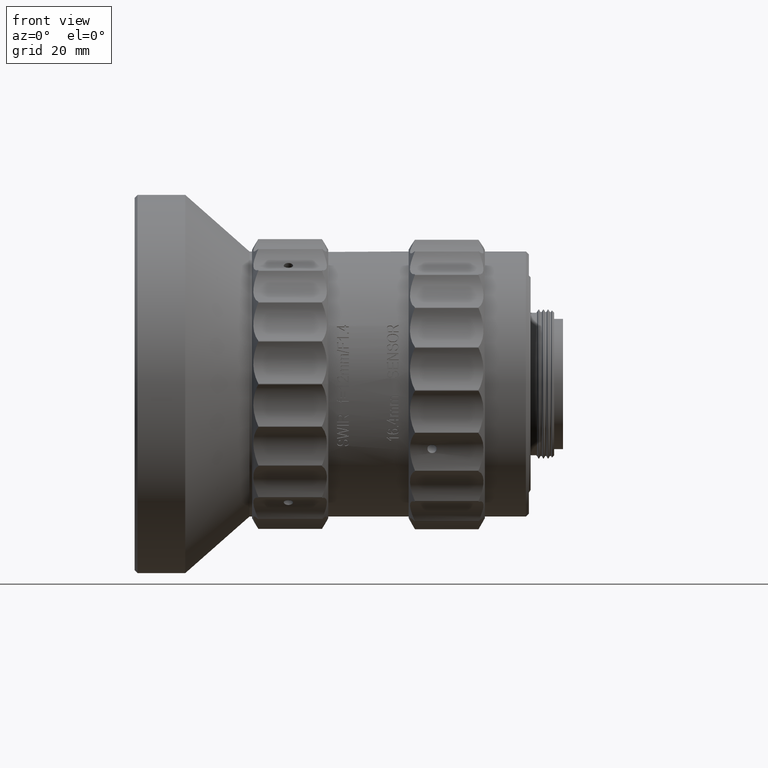
[diagram: clean part render]
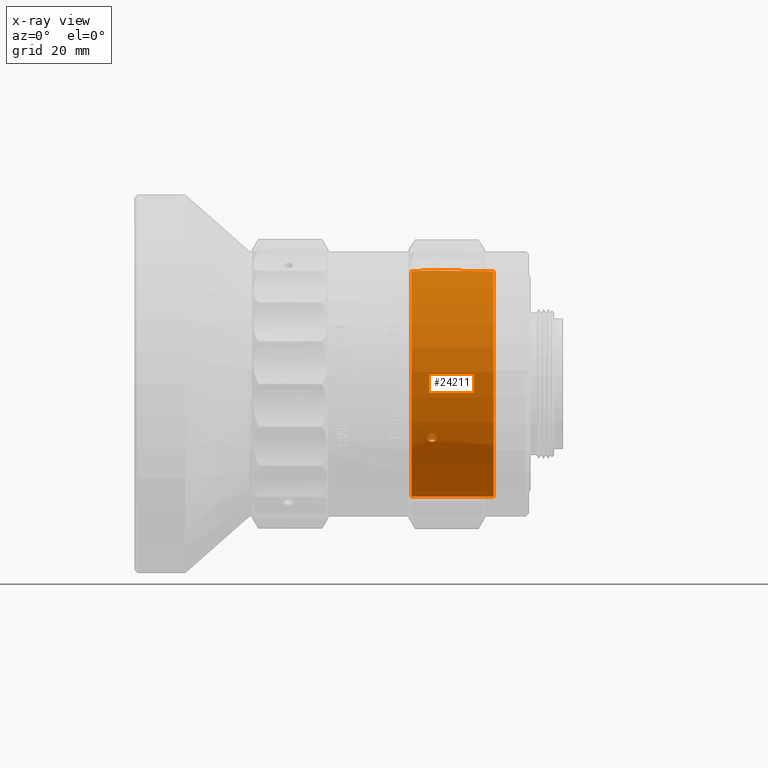
[diagram: x-ray — body ghosted, one internal face saturated and labeled with its STEP entity id]
A machine part, front view, then the same camera in x-ray: the body is ghosted and one INTERNAL B-rep face — a face not visible from any outside direction — is saturated and labeled: STEP entity #24211.
In plain terms, the highlighted cylindrical surface (bore or boss wall) has radius 19.325 mm, axis along (-1, 0, -0).
Its self-contained STEP definition (entity closure, byte-faithful):
#1458 = EDGE_CURVE ( 'NONE', #45052, #45052, #30689, .T. ) ;
#1744 = CARTESIAN_POINT ( 'NONE',  ( 10.46657280345892360, -17.21024025238607535, -8.790485733136330637 ) ) ;
#2420 = CARTESIAN_POINT ( 'NONE',  ( 11.86524698605239969, 16.64138578132303081, -9.824931971593915847 ) ) ;
#3637 = VERTEX_POINT ( 'NONE', #34147 ) ;
#4030 = ORIENTED_EDGE ( 'NONE', *, *, #28160, .F. ) ;
#4715 = CARTESIAN_POINT ( 'NONE',  ( 10.38652374420801472, 0.7988025383809647106, 19.30872661455866535 ) ) ;
#5603 = CARTESIAN_POINT ( 'NONE',  ( 11.87918453679185760, -17.21766475113674133, -8.776642030549991702 ) ) ;
#7524 = CARTESIAN_POINT ( 'NONE',  ( 10.74903446724937695, 16.04615642691115696, -10.77027571418564023 ) ) ;
#7937 = CARTESIAN_POINT ( 'NONE',  ( 11.56908393124501266, 16.05451788601875052, -10.75684409065582336 ) ) ;
#8357 = CARTESIAN_POINT ( 'NONE',  ( 11.58278566961441491, 16.79834498069409676, -9.554767445571396678 ) ) ;
#9525 = DIRECTION ( 'NONE',  ( 0.000000000000000000, 0.5262185795805698341, 0.8503493438018328021 ) ) ;
#9555 = EDGE_LOOP ( 'NONE', ( #19121 ) ) ;
#10382 = CARTESIAN_POINT ( 'NONE',  ( 10.45263517093136052, -16.82188760208558165, -9.513228805840961755 ) ) ;
#11490 = CARTESIAN_POINT ( 'NONE',  ( 10.45263517093135874, 0.1722459831437894995, 19.32479640598022641 ) ) ;
#13614 = CARTESIAN_POINT ( 'NONE',  ( 10.36605221678390087, -16.92422289942868829, -9.331123036677865912 ) ) ;
#13858 = CARTESIAN_POINT ( 'NONE',  ( 10.46657289794988799, 16.21790398624965590, -10.50926254643127145 ) ) ;
#14076 = CARTESIAN_POINT ( 'NONE',  ( 11.27161580211968683, 1.389383277042686826, 19.27498998989774392 ) ) ;
#15471 = CARTESIAN_POINT ( 'NONE',  ( 21.66590972429174755, 1.485686957706086389E-13, 3.134080337083709183E-11 ) ) ;
#15544 = CARTESIAN_POINT ( 'NONE',  ( 11.96598077744916111, 16.48762598211984809, -10.08090783074721308 ) ) ;
#16428 = CARTESIAN_POINT ( 'NONE',  ( 7.665909894755713161, 1.485686960589964959E-13, 3.134080336982831276E-11 ) ) ;
#16722 = CARTESIAN_POINT ( 'NONE',  ( 10.67400350064318459, -16.71139614040120946, -9.705169446767699881 ) ) ;
#16856 = CARTESIAN_POINT ( 'NONE',  ( 7.665909894755713161, 10.16917405039433042, 16.43300106900122515 ) ) ;
#17001 = CARTESIAN_POINT ( 'NONE',  ( 10.52520552376666352, 1.080405923557038239, 19.29491994150334477 ) ) ;
#17847 = CARTESIAN_POINT ( 'NONE',  ( 11.65781601578262183, 1.229112623057049491, 19.28601454720259412 ) ) ;
#17859 = FACE_OUTER_BOUND ( 'NONE', #28398, .T. ) ;
#18557 = CARTESIAN_POINT ( 'NONE',  ( 10.95449817998014375, 15.99793935039390469, -10.84073620841405727 ) ) ;
#18684 = FACE_BOUND ( 'NONE', #69399, .T. ) ;
#19121 = ORIENTED_EDGE ( 'NONE', *, *, #1458, .F. ) ;
#19240 = AXIS2_PLACEMENT_3D ( 'NONE', #15471, #67465, #9525 ) ;
#19561 = CARTESIAN_POINT ( 'NONE',  ( 11.94529602625587827, -16.92372110608342695, -9.330202189695897985 ) ) ;
#22936 = CARTESIAN_POINT ( 'NONE',  ( 11.58278532226193214, -0.1245013913080505880, 19.32517721631352714 ) ) ;
#23088 = CARTESIAN_POINT ( 'NONE',  ( 11.37533973741013327, -17.37825889659280065, -8.453008758051080207 ) ) ;
#23363 = FACE_OUTER_BOUND ( 'NONE', #75309, .T. ) ;
#23782 = CARTESIAN_POINT ( 'NONE',  ( 10.95647956556122438, -0.1890413695327664567, 19.32411712616280752 ) ) ;
#24211 = ADVANCED_FACE ( 'NONE', ( #23363, #50810, #17859, #76636, #18684 ), #68187, .F. ) ;
#25463 = CARTESIAN_POINT ( 'NONE',  ( -47.52072224693124269, 1.485686971957932503E-13, 3.134080336585182291E-11 ) ) ;
#26570 = CARTESIAN_POINT ( 'NONE',  ( 10.67400377372870146, 16.76062146801043795, -9.619908677286323595 ) ) ;
#26992 = CARTESIAN_POINT ( 'NONE',  ( 10.36583901202857305, 16.37838112029110249, -10.25744340013975986 ) ) ;
#27998 = CARTESIAN_POINT ( 'NONE',  ( 10.36583901206215330, -17.07239709922281179, -9.055372466375798624 ) ) ;
#28160 = EDGE_CURVE ( 'NONE', #40589, #40589, #46311, .T. ) ;
#28398 = EDGE_LOOP ( 'NONE', ( #35066 ) ) ;
#28653 = CARTESIAN_POINT ( 'NONE',  ( 11.65781628886812271, 16.08762234516977685, -10.70744984723395632 ) ) ;
#29700 = CARTESIAN_POINT ( 'NONE',  ( 11.37533973741013149, 1.368609125384991021, 19.27651805706497257 ) ) ;
#30689 = B_SPLINE_CURVE_WITH_KNOTS ( 'NONE', 3,
 ( #48871, #55620, #23088, #55202, #57617, #5603, #31422, #57196, #19561, #81050, #83054, #70314, #31842, #74674, #51260, #70730, #16722, #10382, #13614, #27998, #39409, #1744, #46192, #47437, #53349, #59709 ),
 .UNSPECIFIED., .T., .F.,
 ( 4, 2, 2, 2, 2, 2, 2, 2, 2, 2, 2, 2, 4 ),
 ( 0.000000000000000000, 0.0003126140986186883692, 0.0006252281972373767384, 0.001250456394474757380, 0.001563070493093447538, 0.001875684591712137913, 0.002500912788949519096, 0.002813526887568210122, 0.003126140986186900280, 0.003751369183424277127, 0.004063983282042966418, 0.004376597380661655275, 0.005001825577899026050 ),
 .UNSPECIFIED. ) ;
#31422 = CARTESIAN_POINT ( 'NONE',  ( 11.96576757266026014, -17.12229396256914526, -8.962490020956231263 ) ) ;
#31665 = CARTESIAN_POINT ( 'NONE',  ( 11.06020398739163646, 16.83988907772281607, -9.480177258331107026 ) ) ;
#31842 = CARTESIAN_POINT ( 'NONE',  ( 11.37732160953117599, -16.63001887698250059, -9.843683109007510978 ) ) ;
#33309 = VERTEX_POINT ( 'NONE', #64603 ) ;
#34147 = CARTESIAN_POINT ( 'NONE',  ( 11.16590989475566076, 16.83988907772281607, -9.480177258331112355 ) ) ;
#34170 = CARTESIAN_POINT ( 'NONE',  ( 11.94529604530330147, 16.54205262142268040, -9.991271392537649731 ) ) ;
#34628 = ORIENTED_EDGE ( 'NONE', *, *, #57171, .F. ) ;
#35066 = ORIENTED_EDGE ( 'NONE', *, *, #44529, .F. ) ;
#35621 = CARTESIAN_POINT ( 'NONE',  ( 10.36583901206215153, 0.6940159529729874599, 19.31281582465773994 ) ) ;
#35892 = DIRECTION ( 'NONE',  ( 1.000000000000000000, -2.059913263988547804E-23, 7.205536881789808455E-23 ) ) ;
#36871 = CARTESIAN_POINT ( 'NONE',  ( 10.67400350064318637, -0.04922521875962491966, 19.32507831372365104 ) ) ;
#39244 = CARTESIAN_POINT ( 'NONE',  ( 11.16590989475566076, 16.83988907772281607, -9.480177258331108803 ) ) ;
#39409 = CARTESIAN_POINT ( 'NONE',  ( 10.38652374420801650, -17.12124903209959470, -8.962580016387121873 ) ) ;
#39663 = CARTESIAN_POINT ( 'NONE',  ( 10.52520566755982401, 16.16968776202702429, -10.58311911428592644 ) ) ;
#39852 = AXIS2_PLACEMENT_3D ( 'NONE', #16428, #35892, #73552 ) ;
#40092 = CARTESIAN_POINT ( 'NONE',  ( 11.37534022395007582, 16.00964984880990372, -10.82350918425581199 ) ) ;
#40589 = VERTEX_POINT ( 'NONE', #52415 ) ;
#40976 = B_SPLINE_CURVE_WITH_KNOTS ( 'NONE', 3,
 ( #72022, #14076, #29700, #43240, #17847, #74950, #75786, #69013, #67749, #62249, #80486, #22936, #54636, #62666, #23782, #74115, #36871, #11490, #43650, #35621, #4715, #69424, #17001, #61413, #55465, #60993 ),
 .UNSPECIFIED., .T., .F.,
 ( 4, 2, 2, 2, 2, 2, 2, 2, 2, 2, 2, 2, 4 ),
 ( 0.000000000000000000, 0.0003126140986186886402, 0.0006252281972373772805, 0.001250456394474755211, 0.001563070493093444068, 0.001875684591712133142, 0.002500912788949514760, 0.002813526887568203183, 0.003126140986186890739, 0.003751369183424264116, 0.004063983282042949938, 0.004376597380661637060, 0.005001825577899013039 ),
 .UNSPECIFIED. ) ;
#43240 = CARTESIAN_POINT ( 'NONE',  ( 11.56908359339102788, 1.288441507090622329, 19.28204236654524095 ) ) ;
#43650 = CARTESIAN_POINT ( 'NONE',  ( 10.36605221678390443, 0.3811218540862847948, 19.32236848860162937 ) ) ;
#44374 = CARTESIAN_POINT ( 'NONE',  ( 11.27161575214342015, 15.99793935039391179, -10.84073620841404839 ) ) ;
#44529 = EDGE_CURVE ( 'NONE', #68034, #68034, #46625, .T. ) ;
#45052 = VERTEX_POINT ( 'NONE', #52204 ) ;
#46029 = CARTESIAN_POINT ( 'NONE',  ( 10.95648005210119180, 16.82969708969493539, -9.498343814042204514 ) ) ;
#46192 = CARTESIAN_POINT ( 'NONE',  ( 10.52520552376665997, -17.25009379507996599, -8.711800994505288998 ) ) ;
#46311 = CIRCLE ( 'NONE', #19240, 19.32499999999937046 ) ;
#46443 = CARTESIAN_POINT ( 'NONE',  ( 11.16590989475566076, 16.83988907772281607, -9.480177258331108803 ) ) ;
#46625 = CIRCLE ( 'NONE', #39852, 19.32499999999937046 ) ;
#47437 = CARTESIAN_POINT ( 'NONE',  ( 10.74903411989689772, -17.35041048357697235, -8.511241453560053571 ) ) ;
#48704 = AXIS2_PLACEMENT_3D ( 'NONE', #25463, #78732, #58397 ) ;
#48871 = CARTESIAN_POINT ( 'NONE',  ( 11.16590989475565898, -17.38732262743614854, -8.434253781389834614 ) ) ;
#50810 = FACE_BOUND ( 'NONE', #67684, .T. ) ;
#51260 = CARTESIAN_POINT ( 'NONE',  ( 10.95647956556122615, -16.64065565216914422, -9.825773191416180552 ) ) ;
#52204 = CARTESIAN_POINT ( 'NONE',  ( 11.16590989475566076, -17.38732262743615209, -8.434253781389832838 ) ) ;
#52338 = CARTESIAN_POINT ( 'NONE',  ( 10.38652376325543969, 16.32244644191169769, -10.34614668018824446 ) ) ;
#52415 = CARTESIAN_POINT ( 'NONE',  ( 21.66590972429174755, 10.16917405039433042, 16.43300106900122515 ) ) ;
#52758 = CARTESIAN_POINT ( 'NONE',  ( 10.36605221685106493, 16.54310109726096201, -9.991245367926895327 ) ) ;
#53349 = CARTESIAN_POINT ( 'NONE',  ( 10.95449808002761216, -17.38732262743615919, -8.434253781389834614 ) ) ;
#54636 = CARTESIAN_POINT ( 'NONE',  ( 11.37732160953118310, -0.2098702007398750846, 19.32386036743248070 ) ) ;
#55202 = CARTESIAN_POINT ( 'NONE',  ( 11.56908359339102255, -17.34295927979388452, -8.525198106795027542 ) ) ;
#55465 = CARTESIAN_POINT ( 'NONE',  ( 10.95449808002761216, 1.389383277042689047, 19.27498998989775458 ) ) ;
#55620 = CARTESIAN_POINT ( 'NONE',  ( 11.27161580211968328, -17.38732262743614143, -8.434253781389834614 ) ) ;
#57171 = EDGE_CURVE ( 'NONE', #33309, #33309, #40976, .T. ) ;
#57196 = CARTESIAN_POINT ( 'NONE',  ( 11.96598077748274491, -16.97413524237412474, -9.238249076650015823 ) ) ;
#57617 = CARTESIAN_POINT ( 'NONE',  ( 11.65781601578261650, -17.31673484713480704, -8.578564517874962547 ) ) ;
#58397 = DIRECTION ( 'NONE',  ( 0.000000000000000000, 0.5262185795805698341, 0.8503493438018328021 ) ) ;
#59709 = CARTESIAN_POINT ( 'NONE',  ( 11.16590989475565898, -17.38732262743614854, -8.434253781389834614 ) ) ;
#60993 = CARTESIAN_POINT ( 'NONE',  ( 11.16590989475566253, 1.389383277042687492, 19.27498998989774748 ) ) ;
#61413 = CARTESIAN_POINT ( 'NONE',  ( 10.74903411989689950, 1.304253925235456135, 19.28151697169267109 ) ) ;
#62249 = CARTESIAN_POINT ( 'NONE',  ( 11.86524689156141932, 0.1879476095195205809, 19.32432882857712286 ) ) ;
#62666 = CARTESIAN_POINT ( 'NONE',  ( 11.06020403736790492, -0.2098702007398763614, 19.32386036743249491 ) ) ;
#64603 = CARTESIAN_POINT ( 'NONE',  ( 11.16590989475566076, 1.389383277042687714, 19.27498998989775103 ) ) ;
#65039 = CARTESIAN_POINT ( 'NONE',  ( 10.76273619612029719, 16.79005549404429942, -9.568243090951884966 ) ) ;
#65879 = CARTESIAN_POINT ( 'NONE',  ( 11.96576757272740643, 16.32289107254731775, -10.34709644822487817 ) ) ;
#67465 = DIRECTION ( 'NONE',  ( -1.000000000000000000, 2.059913263988547804E-23, -7.205536881789808455E-23 ) ) ;
#67684 = EDGE_LOOP ( 'NONE', ( #68347 ) ) ;
#67749 = CARTESIAN_POINT ( 'NONE',  ( 11.94529602625587827, 0.3816684342930432572, 19.32147349932622049 ) ) ;
#68034 = VERTEX_POINT ( 'NONE', #16856 ) ;
#68187 = CYLINDRICAL_SURFACE ( 'NONE', #48704, 19.32499999999937046 ) ;
#68347 = ORIENTED_EDGE ( 'NONE', *, *, #69854, .F. ) ;
#69013 = CARTESIAN_POINT ( 'NONE',  ( 11.96598077748274669, 0.4865092342931873759, 19.31915686554087941 ) ) ;
#69399 = EDGE_LOOP ( 'NONE', ( #34628 ) ) ;
#69424 = CARTESIAN_POINT ( 'NONE',  ( 10.46657280345892360, 0.9923361696654734443, 19.29974813041515702 ) ) ;
#69854 = EDGE_CURVE ( 'NONE', #3637, #3637, #70211, .T. ) ;
#70211 = B_SPLINE_CURVE_WITH_KNOTS ( 'NONE', 3,
 ( #39244, #31665, #46029, #65039, #26570, #71809, #52758, #26992, #52338, #13858, #39663, #7524, #18557, #44374, #40092, #7937, #28653, #79449, #65879, #15544, #34170, #2420, #73484, #8357, #73066, #46443 ),
 .UNSPECIFIED., .T., .F.,
 ( 4, 2, 2, 2, 2, 2, 2, 2, 2, 2, 2, 2, 4 ),
 ( 0.000000000000000000, 0.0003126140986186888029, 0.0006252281972373776057, 0.001250456394474751742, 0.001563070493093441250, 0.001875684591712130974, 0.002500912788949513459, 0.002813526887568204484, 0.003126140986186895076, 0.003751369183424269754, 0.004063983282042957744, 0.004376597380661645734, 0.005001825577899024315 ),
 .UNSPECIFIED. ) ;
#70314 = CARTESIAN_POINT ( 'NONE',  ( 11.58278532226193036, -16.67384370628231594, -9.770409975789240420 ) ) ;
#70730 = CARTESIAN_POINT ( 'NONE',  ( 10.76273585826629464, -16.68136943618277712, -9.756492867665775393 ) ) ;
#71809 = CARTESIAN_POINT ( 'NONE',  ( 10.45263525271945859, 16.64964171606183641, -9.811567435515675228 ) ) ;
#72022 = CARTESIAN_POINT ( 'NONE',  ( 11.16590989475566253, 1.389383277042687492, 19.27498998989774748 ) ) ;
#73066 = CARTESIAN_POINT ( 'NONE',  ( 11.37732170948370936, 16.83988907772281607, -9.480177258331112355 ) ) ;
#73484 = CARTESIAN_POINT ( 'NONE',  ( 11.80661426574465089, 16.68596941089629837, -9.748827484651542363 ) ) ;
#73552 = DIRECTION ( 'NONE',  ( 0.000000000000000000, 0.5262185795805698341, 0.8503493438018328021 ) ) ;
#74115 = CARTESIAN_POINT ( 'NONE',  ( 10.76273585826629464, -0.1086859571756852993, 19.32473613552760838 ) ) ;
#74674 = CARTESIAN_POINT ( 'NONE',  ( 11.06020403736790136, -16.63001887698247572, -9.843683109007510978 ) ) ;
#74950 = CARTESIAN_POINT ( 'NONE',  ( 11.87918453679185760, 1.008037417163010208, 19.29925608365041256 ) ) ;
#75309 = EDGE_LOOP ( 'NONE', ( #4030 ) ) ;
#75786 = CARTESIAN_POINT ( 'NONE',  ( 11.96576757266024593, 0.7994029419451252894, 19.30958655317506256 ) ) ;
#76636 = FACE_BOUND ( 'NONE', #9555, .T. ) ;
#78732 = DIRECTION ( 'NONE',  ( -1.000000000000000000, 2.059913263988547804E-23, -7.205536881789808455E-23 ) ) ;
#79449 = CARTESIAN_POINT ( 'NONE',  ( 11.87918461857994501, 16.20962743788465588, -10.52261389267923875 ) ) ;
#80486 = CARTESIAN_POINT ( 'NONE',  ( 11.80661412195149040, 0.09974735338697450493, 19.32488714005783592 ) ) ;
#81050 = CARTESIAN_POINT ( 'NONE',  ( 11.86524689156142287, -16.82933348136411666, -9.499397009817291959 ) ) ;
#83054 = CARTESIAN_POINT ( 'NONE',  ( 11.80661412195148330, -16.78571686522336748, -9.576059827988730788 ) ) ;